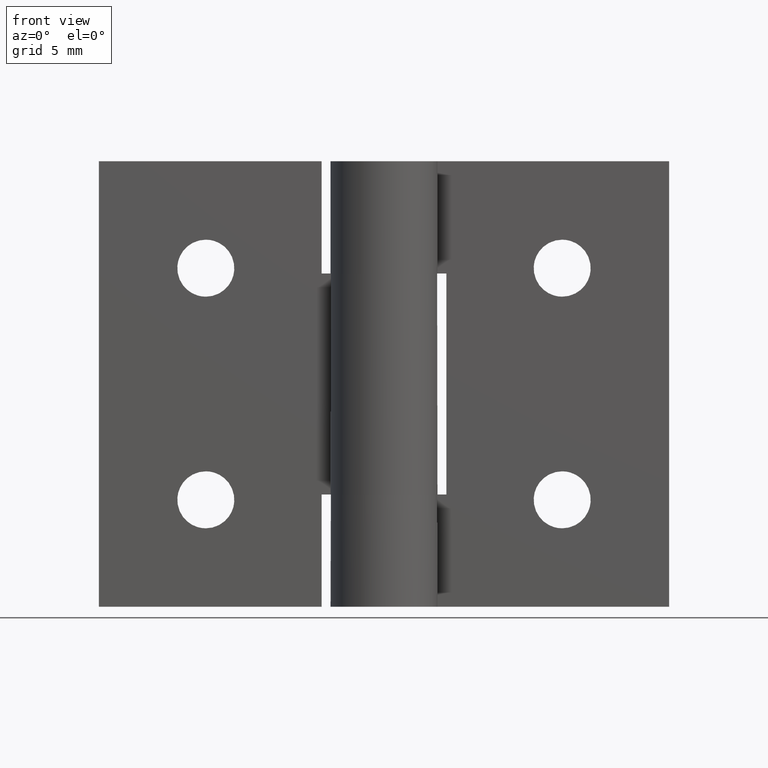
[diagram: clean part render]
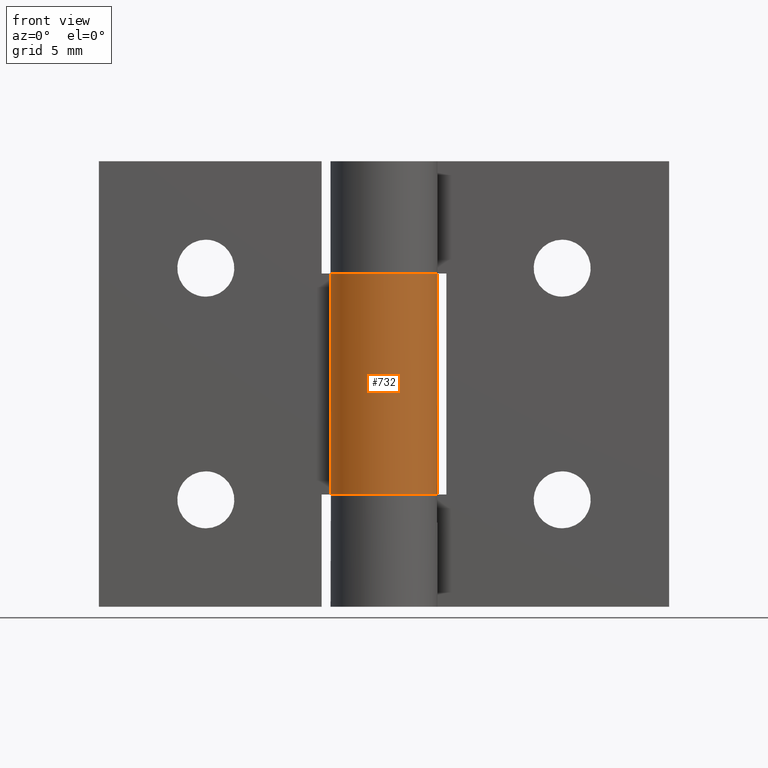
[diagram: same view with one face highlighted and labeled with its STEP entity id]
A machine part, front view. The second image highlights one B-rep face of the part: STEP entity #732.
In plain terms, the highlighted face is a freeform B-spline surface patch.
Its self-contained STEP definition (entity closure, byte-faithful):
#457=CARTESIAN_POINT('',(0.0,3.0,6.300003000000000));
#458=VERTEX_POINT('',#457);
#464=CARTESIAN_POINT('',(-2.626309197333780,1.450000000000000,6.300003000000000));
#465=VERTEX_POINT('',#464);
#466=CARTESIAN_POINT('',(-2.626309197333780,1.450000000000000,6.300003000000000));
#467=CARTESIAN_POINT('',(-3.733431584505770,-0.555272902071675,6.300003000000001));
#468=CARTESIAN_POINT('',(-2.090650590886091,-2.151552952364324,6.300003000000000));
#469=CARTESIAN_POINT('',(-0.447869597266413,-3.747833002656972,6.300003000000001));
#470=CARTESIAN_POINT('',(1.524795068197689,-2.583602136552764,6.300003000000000));
#471=CARTESIAN_POINT('',(3.497459733661792,-1.419371270448555,6.300003000000001));
#472=CARTESIAN_POINT('',(2.894028888043301,0.790314364775722,6.300003000000000));
#473=CARTESIAN_POINT('',(2.290598042424809,3.000000000000000,6.300003000000001));
#474=CARTESIAN_POINT('',(0.0,3.0,6.300003000000000));
#482=(BOUNDED_CURVE()B_SPLINE_CURVE(2,(#466,#467,#468,#469,#470,#471,#472,#473,#474),.UNSPECIFIED.,.F.,.U.)B_SPLINE_CURVE_WITH_KNOTS((3,2,2,2,3),(0.0,0.250000000000000,0.500000000000000,0.750000000000000,1.0),.UNSPECIFIED.)CURVE()GEOMETRIC_REPRESENTATION_ITEM()RATIONAL_B_SPLINE_CURVE((1.0,0.794807562115481,1.0,0.794807562115481,1.0,0.794807562115481,1.0,0.794807562115481,1.0))REPRESENTATION_ITEM(''));
#483=EDGE_CURVE('',#465,#458,#482,.T.);
#583=CARTESIAN_POINT('',(-2.626309197333780,1.450000000000000,18.699997000000000));
#584=VERTEX_POINT('',#583);
#590=CARTESIAN_POINT('',(0.0,3.0,18.699997000000000));
#591=VERTEX_POINT('',#590);
#592=CARTESIAN_POINT('',(0.0,3.0,18.699997000000000));
#593=CARTESIAN_POINT('',(2.290598042424808,3.0,18.699997000000003));
#594=CARTESIAN_POINT('',(2.894028888043301,0.790314364775724,18.699997000000000));
#595=CARTESIAN_POINT('',(3.497459733661794,-1.419371270448550,18.699997000000003));
#596=CARTESIAN_POINT('',(1.524795068197693,-2.583602136552761,18.699997000000000));
#597=CARTESIAN_POINT('',(-0.447869597266408,-3.747833002656974,18.699997000000003));
#598=CARTESIAN_POINT('',(-2.090650590886088,-2.151552952364328,18.699997000000000));
#599=CARTESIAN_POINT('',(-3.733431584505768,-0.555272902071681,18.699997000000003));
#600=CARTESIAN_POINT('',(-2.626309197333781,1.449999999999996,18.699997000000000));
#608=(BOUNDED_CURVE()B_SPLINE_CURVE(2,(#592,#593,#594,#595,#596,#597,#598,#599,#600),.UNSPECIFIED.,.F.,.U.)B_SPLINE_CURVE_WITH_KNOTS((3,2,2,2,3),(0.0,0.250000000000000,0.500000000000000,0.750000000000000,1.0),.UNSPECIFIED.)CURVE()GEOMETRIC_REPRESENTATION_ITEM()RATIONAL_B_SPLINE_CURVE((1.0,0.794807562115481,1.0,0.794807562115481,1.0,0.794807562115481,1.0,0.794807562115481,1.0))REPRESENTATION_ITEM(''));
#609=EDGE_CURVE('',#591,#584,#608,.T.);
#696=CARTESIAN_POINT('',(-2.584887481324576,1.522615088882112,19.009996850000000));
#697=CARTESIAN_POINT('',(-2.584887481324576,1.522615088882112,5.982253153750001));
#698=CARTESIAN_POINT('',(-4.454017153952614,-1.650537421576552,19.009996849999997));
#699=CARTESIAN_POINT('',(-4.454017153952614,-1.650537421576552,5.982253153750001));
#700=CARTESIAN_POINT('',(-0.968449136630486,-2.839384840024272,19.009996850000000));
#701=CARTESIAN_POINT('',(-0.968449136630486,-2.839384840024272,5.982253153750001));
#702=CARTESIAN_POINT('',(2.517118880691642,-4.028232258471992,19.009996849999997));
#703=CARTESIAN_POINT('',(2.517118880691642,-4.028232258471992,5.982253153750001));
#704=CARTESIAN_POINT('',(2.976562347997527,-0.374268070349911,19.009996850000000));
#705=CARTESIAN_POINT('',(2.976562347997527,-0.374268070349911,5.982253153750001));
#706=CARTESIAN_POINT('',(3.436005815303412,3.279696117772171,19.009996849999997));
#707=CARTESIAN_POINT('',(3.436005815303412,3.279696117772171,5.982253153750001));
#708=CARTESIAN_POINT('',(-0.235377287183536,2.990752001199384,19.009996850000000));
#709=CARTESIAN_POINT('',(-0.235377287183536,2.990752001199384,5.982253153750001));
#717=(BOUNDED_SURFACE()B_SPLINE_SURFACE(1,2,((#696,#698,#700,#702,#704,#706,#708),(#697,#699,#701,#703,#705,#707,#709)),.UNSPECIFIED.,.F.,.F.,.U.)B_SPLINE_SURFACE_WITH_KNOTS((2,2),(3,2,2,3),(0.0,13.027743696250001),(0.0,5.702297214197750,11.404594428395500,17.106891642593251),.UNSPECIFIED.)GEOMETRIC_REPRESENTATION_ITEM()RATIONAL_B_SPLINE_SURFACE(((1.0,0.631578351302498,1.0,0.631578351302498,1.0,0.631578351302498,1.0),(1.0,0.631578351302498,1.0,0.631578351302498,1.0,0.631578351302498,1.0)))REPRESENTATION_ITEM('')SURFACE());
#718=ORIENTED_EDGE('',*,*,#483,.T.);
#719=CARTESIAN_POINT('',(0.0,3.0,18.699997000000000));
#720=CARTESIAN_POINT('',(0.0,3.0,6.300003000000000));
#721=QUASI_UNIFORM_CURVE('',1,(#719,#720),.UNSPECIFIED.,.F.,.U.);
#722=EDGE_CURVE('',#591,#458,#721,.T.);
#723=ORIENTED_EDGE('',*,*,#722,.F.);
#724=ORIENTED_EDGE('',*,*,#609,.T.);
#725=CARTESIAN_POINT('',(-2.626309197333780,1.450000000000000,18.699997000000000));
#726=CARTESIAN_POINT('',(-2.626309197333780,1.450000000000000,6.300003000000000));
#727=QUASI_UNIFORM_CURVE('',1,(#725,#726),.UNSPECIFIED.,.F.,.U.);
#728=EDGE_CURVE('',#584,#465,#727,.T.);
#729=ORIENTED_EDGE('',*,*,#728,.T.);
#730=EDGE_LOOP('',(#718,#723,#724,#729));
#731=FACE_OUTER_BOUND('',#730,.T.);
#732=ADVANCED_FACE('',(#731),#717,.T.);